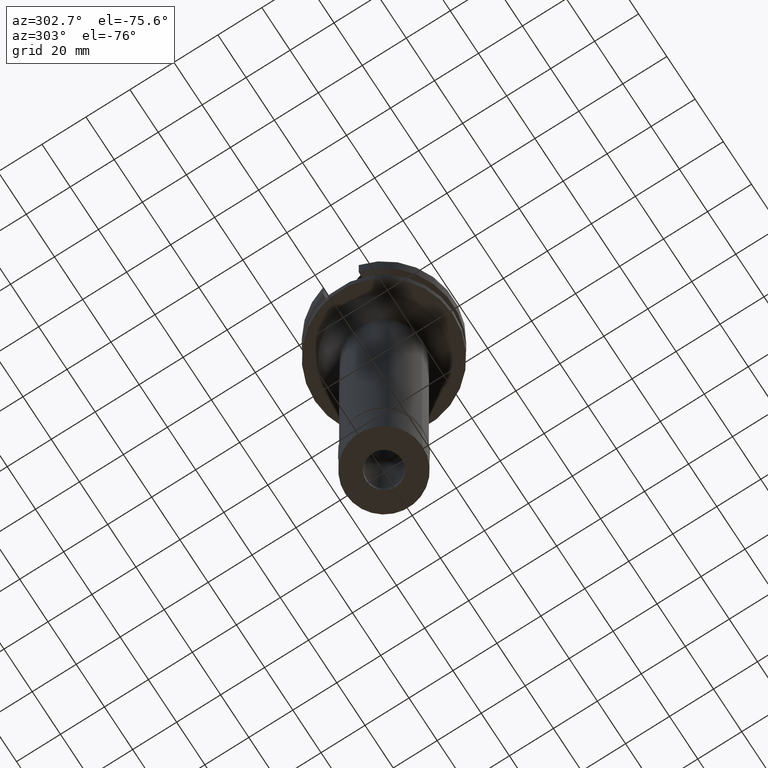
[diagram: clean part render]
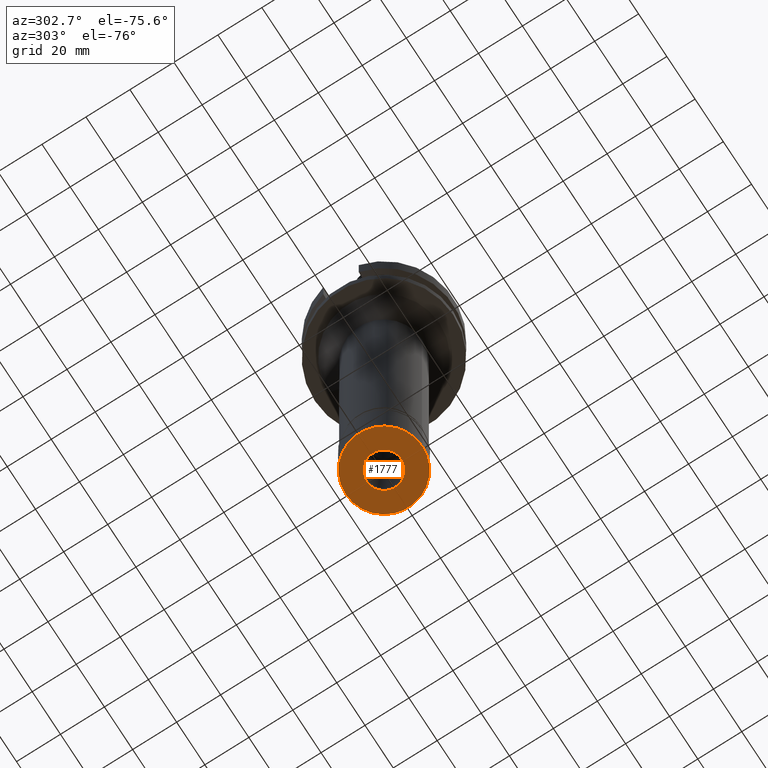
[diagram: same view with one face highlighted and labeled with its STEP entity id]
A machine part, auxiliary view. The second image highlights one B-rep face of the part: STEP entity #1777.
In plain terms, the highlighted planar face has unit normal (0, 0, -1).
Its self-contained STEP definition (entity closure, byte-faithful):
#30 = VERTEX_POINT ( 'NONE', #1318 ) ;
#178 = CIRCLE ( 'NONE', #1404, 17.50000000000000000 ) ;
#238 = CARTESIAN_POINT ( 'NONE',  ( 0.0000000000000000000, 0.0000000000000000000, -26.70000000000000284 ) ) ;
#249 = ORIENTED_EDGE ( 'NONE', *, *, #1533, .F. ) ;
#273 = DIRECTION ( 'NONE',  ( 0.0000000000000000000, 1.000000000000000000, 0.0000000000000000000 ) ) ;
#425 = EDGE_CURVE ( 'NONE', #2810, #30, #1919, .T. ) ;
#511 = CARTESIAN_POINT ( 'NONE',  ( 0.0000000000000000000, -17.50000000000000000, -26.70000000000000284 ) ) ;
#657 = DIRECTION ( 'NONE',  ( 0.0000000000000000000, 1.000000000000000000, 0.0000000000000000000 ) ) ;
#719 = FACE_OUTER_BOUND ( 'NONE', #3007, .T. ) ;
#738 = PLANE ( 'NONE',  #1234 ) ;
#757 = DIRECTION ( 'NONE',  ( 0.0000000000000000000, -1.000000000000000000, 0.0000000000000000000 ) ) ;
#827 = CARTESIAN_POINT ( 'NONE',  ( 0.0000000000000000000, 0.0000000000000000000, -26.70000000000000284 ) ) ;
#853 = AXIS2_PLACEMENT_3D ( 'NONE', #827, #2997, #657 ) ;
#979 = DIRECTION ( 'NONE',  ( 0.0000000000000000000, 0.0000000000000000000, -1.000000000000000000 ) ) ;
#1001 = ORIENTED_EDGE ( 'NONE', *, *, #1555, .F. ) ;
#1169 = DIRECTION ( 'NONE',  ( 0.0000000000000000000, -1.000000000000000000, 0.0000000000000000000 ) ) ;
#1177 = DIRECTION ( 'NONE',  ( 0.0000000000000000000, -1.000000000000000000, 0.0000000000000000000 ) ) ;
#1192 = CARTESIAN_POINT ( 'NONE',  ( 0.0000000000000000000, 0.0000000000000000000, -26.70000000000000284 ) ) ;
#1234 = AXIS2_PLACEMENT_3D ( 'NONE', #1192, #2888, #1177 ) ;
#1318 = CARTESIAN_POINT ( 'NONE',  ( 0.0000000000000000000, 8.000000000000000000, -26.70000000000000284 ) ) ;
#1332 = CIRCLE ( 'NONE', #2599, 17.50000000000000000 ) ;
#1340 = AXIS2_PLACEMENT_3D ( 'NONE', #238, #979, #757 ) ;
#1348 = CARTESIAN_POINT ( 'NONE',  ( 0.0000000000000000000, 0.0000000000000000000, -26.70000000000000284 ) ) ;
#1386 = CARTESIAN_POINT ( 'NONE',  ( 0.0000000000000000000, 17.50000000000000000, -26.70000000000000284 ) ) ;
#1404 = AXIS2_PLACEMENT_3D ( 'NONE', #1348, #2474, #273 ) ;
#1498 = VERTEX_POINT ( 'NONE', #511 ) ;
#1533 = EDGE_CURVE ( 'NONE', #2858, #1498, #178, .T. ) ;
#1555 = EDGE_CURVE ( 'NONE', #30, #2810, #2212, .T. ) ;
#1777 = ADVANCED_FACE ( 'NONE', ( #719, #2177 ), #738, .T. ) ;
#1879 = CARTESIAN_POINT ( 'NONE',  ( 0.0000000000000000000, 0.0000000000000000000, -26.70000000000000284 ) ) ;
#1919 = CIRCLE ( 'NONE', #1340, 8.000000000000000000 ) ;
#2176 = ORIENTED_EDGE ( 'NONE', *, *, #2853, .F. ) ;
#2177 = FACE_BOUND ( 'NONE', #2797, .T. ) ;
#2212 = CIRCLE ( 'NONE', #853, 8.000000000000000000 ) ;
#2399 = CARTESIAN_POINT ( 'NONE',  ( 0.0000000000000000000, -8.000000000000000000, -26.70000000000000284 ) ) ;
#2474 = DIRECTION ( 'NONE',  ( 0.0000000000000000000, 0.0000000000000000000, 1.000000000000000000 ) ) ;
#2599 = AXIS2_PLACEMENT_3D ( 'NONE', #1879, #2815, #1169 ) ;
#2797 = EDGE_LOOP ( 'NONE', ( #1001, #2915 ) ) ;
#2810 = VERTEX_POINT ( 'NONE', #2399 ) ;
#2815 = DIRECTION ( 'NONE',  ( 0.0000000000000000000, 0.0000000000000000000, 1.000000000000000000 ) ) ;
#2853 = EDGE_CURVE ( 'NONE', #1498, #2858, #1332, .T. ) ;
#2858 = VERTEX_POINT ( 'NONE', #1386 ) ;
#2888 = DIRECTION ( 'NONE',  ( 0.0000000000000000000, 0.0000000000000000000, -1.000000000000000000 ) ) ;
#2915 = ORIENTED_EDGE ( 'NONE', *, *, #425, .F. ) ;
#2997 = DIRECTION ( 'NONE',  ( 0.0000000000000000000, 0.0000000000000000000, -1.000000000000000000 ) ) ;
#3007 = EDGE_LOOP ( 'NONE', ( #249, #2176 ) ) ;